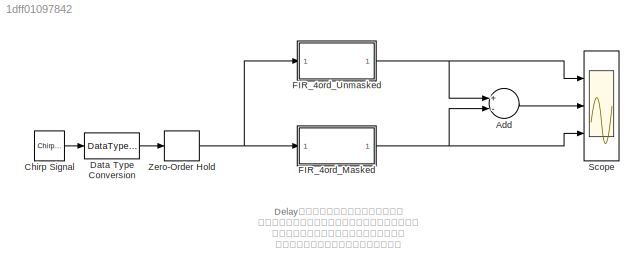
MODEL slx_1dff01097842
KIND model
CONFIG AbsTol = auto
CONFIG FixedStep = auto
CONFIG MaxStep = auto
CONFIG MinStep = auto
CONFIG PreLoadFcn = H=[1 0 3 0 1]/4\npipeline=0\n
CONFIG RelTol = 1e-3
CONFIG SampleTimeConstraint = Unconstrained
CONFIG Solver = FixedStepDiscrete
CONFIG SolverMode = SingleTasking
CONFIG SolverName = FixedStepDiscrete
CONFIG StartTime = 0.0
CONFIG StopTime = 10.0
BLOCK [Sum] Add
  InputSameDT = off
  Inputs = +-
  OutDataTypeStr = Inherit: Inherit via internal rule
  Ports = [2, 1]
  SaturateOnIntegerOverflow = off
BLOCK [Reference] Chirp Signal  REF=simulink/Sources/Chirp Signal
  Ports = [0, 1]
  SourceBlock = simulink/Sources/Chirp Signal
  SourceType = chirp
BLOCK [DataTypeConversion] Data Type Conversion
  OutDataTypeStr = fixdt(1,16,14)
  RndMeth = Nearest
  SaturateOnIntegerOverflow = off
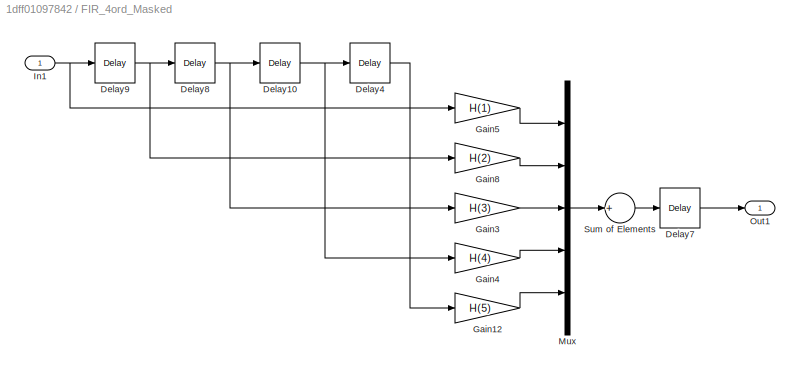
BLOCK [SubSystem] FIR_4ord_Masked
  Ports = [1, 1]
  RequestExecContextInheritance = off
  Variant = off
BLOCK [Delay] FIR_4ord_Masked/Delay10
  DelayLength = 1
  InitialCondition = 0
  InputPortMap = u0
  InputProcessing = Inherited
  Ports = [1, 1]
  UserDataPersistent = on
BLOCK [Delay] FIR_4ord_Masked/Delay4
  DelayLength = 1
  InitialCondition = 0
  InputPortMap = u0
  InputProcessing = Inherited
  Ports = [1, 1]
  UserDataPersistent = on
BLOCK [Delay] FIR_4ord_Masked/Delay7
  DelayLength = pipeline
  InitialCondition = 0
  InputPortMap = u0
  InputProcessing = Inherited
  Ports = [1, 1]
  UserDataPersistent = on
BLOCK [Delay] FIR_4ord_Masked/Delay8
  DelayLength = 1
  InitialCondition = 0
  InputPortMap = u0
  InputProcessing = Inherited
  Ports = [1, 1]
  UserDataPersistent = on
BLOCK [Delay] FIR_4ord_Masked/Delay9
  DelayLength = 1
  InitialCondition = 0
  InputPortMap = u0
  InputProcessing = Inherited
  Ports = [1, 1]
  UserDataPersistent = on
BLOCK [Gain] FIR_4ord_Masked/Gain12
  Gain = H(5)
  ParamDataTypeStr = Inherit: Inherit via internal rule
  RndMeth = Nearest
  SaturateOnIntegerOverflow = off
BLOCK [Gain] FIR_4ord_Masked/Gain3
  Gain = H(3)
  ParamDataTypeStr = Inherit: Inherit via internal rule
  RndMeth = Nearest
  SaturateOnIntegerOverflow = off
BLOCK [Gain] FIR_4ord_Masked/Gain4
  Gain = H(4)
  ParamDataTypeStr = Inherit: Inherit via internal rule
  RndMeth = Nearest
  SaturateOnIntegerOverflow = off
BLOCK [Gain] FIR_4ord_Masked/Gain5
  Gain = H(1)
  ParamDataTypeStr = Inherit: Inherit via internal rule
  RndMeth = Nearest
  SaturateOnIntegerOverflow = off
BLOCK [Gain] FIR_4ord_Masked/Gain8
  Gain = H(2)
  ParamDataTypeStr = Inherit: Inherit via internal rule
  RndMeth = Nearest
  SaturateOnIntegerOverflow = off
BLOCK [Inport] FIR_4ord_Masked/In1
  IconDisplay = Port number
BLOCK [Mux] FIR_4ord_Masked/Mux
  DisplayOption = bar
  Inputs = 5
  Ports = [5, 1]
BLOCK [Outport] FIR_4ord_Masked/Out1
  IconDisplay = Port number
BLOCK [Sum] FIR_4ord_Masked/Sum of Elements
  InputSameDT = off
  Inputs = +
  OutDataTypeStr = Inherit: Inherit via internal rule
  Ports = [1, 1]
  RndMeth = Nearest
  SaturateOnIntegerOverflow = off
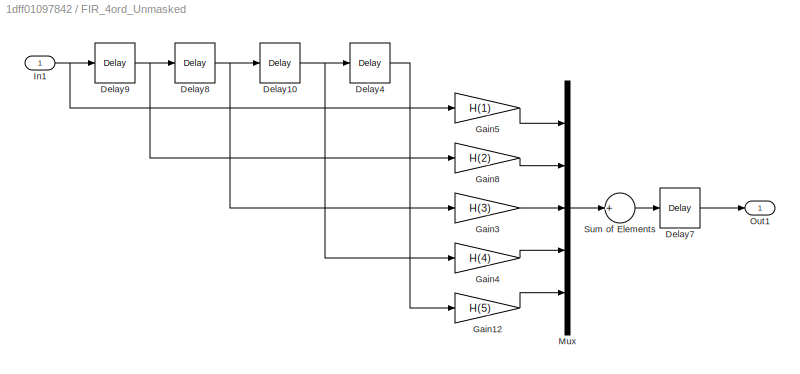
BLOCK [SubSystem] FIR_4ord_Unmasked
  Ports = [1, 1]
  RequestExecContextInheritance = off
  Variant = off
BLOCK [Delay] FIR_4ord_Unmasked/Delay10
  DelayLength = 1
  InitialCondition = 0
  InputPortMap = u0
  InputProcessing = Inherited
  Ports = [1, 1]
  UserDataPersistent = on
BLOCK [Delay] FIR_4ord_Unmasked/Delay4
  DelayLength = 1
  InitialCondition = 0
  InputPortMap = u0
  InputProcessing = Inherited
  Ports = [1, 1]
  UserDataPersistent = on
BLOCK [Delay] FIR_4ord_Unmasked/Delay7
  DelayLength = pipeline
  InitialCondition = 0
  InputPortMap = u0
  InputProcessing = Inherited
  Ports = [1, 1]
  UserDataPersistent = on
BLOCK [Delay] FIR_4ord_Unmasked/Delay8
  DelayLength = 1
  InitialCondition = 0
  InputPortMap = u0
  InputProcessing = Inherited
  Ports = [1, 1]
  UserDataPersistent = on
BLOCK [Delay] FIR_4ord_Unmasked/Delay9
  DelayLength = 1
  InitialCondition = 0
  InputPortMap = u0
  InputProcessing = Inherited
  Ports = [1, 1]
  UserDataPersistent = on
BLOCK [Gain] FIR_4ord_Unmasked/Gain12
  Gain = H(5)
  ParamDataTypeStr = Inherit: Inherit via internal rule
  RndMeth = Nearest
  SaturateOnIntegerOverflow = off
BLOCK [Gain] FIR_4ord_Unmasked/Gain3
  Gain = H(3)
  ParamDataTypeStr = Inherit: Inherit via internal rule
  RndMeth = Nearest
  SaturateOnIntegerOverflow = off
BLOCK [Gain] FIR_4ord_Unmasked/Gain4
  Gain = H(4)
  ParamDataTypeStr = Inherit: Inherit via internal rule
  RndMeth = Nearest
  SaturateOnIntegerOverflow = off
BLOCK [Gain] FIR_4ord_Unmasked/Gain5
  Gain = H(1)
  ParamDataTypeStr = Inherit: Inherit via internal rule
  RndMeth = Nearest
  SaturateOnIntegerOverflow = off
BLOCK [Gain] FIR_4ord_Unmasked/Gain8
  Gain = H(2)
  ParamDataTypeStr = Inherit: Inherit via internal rule
  RndMeth = Nearest
  SaturateOnIntegerOverflow = off
BLOCK [Inport] FIR_4ord_Unmasked/In1
  IconDisplay = Port number
BLOCK [Mux] FIR_4ord_Unmasked/Mux
  DisplayOption = bar
  Inputs = 5
  Ports = [5, 1]
BLOCK [Outport] FIR_4ord_Unmasked/Out1
  IconDisplay = Port number
BLOCK [Sum] FIR_4ord_Unmasked/Sum of Elements
  InputSameDT = off
  Inputs = +
  OutDataTypeStr = Inherit: Inherit via internal rule
  Ports = [1, 1]
  RndMeth = Nearest
  SaturateOnIntegerOverflow = off
BLOCK [Scope] Scope
  NumInputPorts = 3
  Ports = [3]
  ScopeSpecificationString = Simulink.scopes.TimeScopeBlockCfg('CurrentConfiguration', extmgr.ConfigurationSet(extmgr.Configuration('Core','General UI',true),extmgr.Configuration('Core','Source UI',true),extmgr.Configuration('Sources','WiredSimulink',true,'DataLoggingSaveFormat','StructureWithTime','DataLoggingDecimation','1','DataLoggingDecimateData',true),extmgr.Configuration('Visuals','Time Domain',true,'SerializedDisplays...<+3067ch>
BLOCK [ZeroOrderHold] Zero-Order Hold
  SampleTime = 1/1000
ANNOTATION (root): Delayブロックと乗算、加算器といった プリミティブなブロックを使って構成しています。 サブシステム化、さらにマスクブロック化 することで可読性と汎用性が増します。
LINE Add:1 -> Scope:2
LINE Chirp Signal:1 -> Data Type Conversion:1
LINE Data Type Conversion:1 -> Zero-Order Hold:1
NET FIR_4ord_Masked/Delay10:1 -> FIR_4ord_Masked/Delay4:1, FIR_4ord_Masked/Gain4:1
LINE FIR_4ord_Masked/Delay4:1 -> FIR_4ord_Masked/Gain12:1
LINE FIR_4ord_Masked/Delay7:1 -> FIR_4ord_Masked/Out1:1
NET FIR_4ord_Masked/Delay8:1 -> FIR_4ord_Masked/Delay10:1, FIR_4ord_Masked/Gain3:1
NET FIR_4ord_Masked/Delay9:1 -> FIR_4ord_Masked/Delay8:1, FIR_4ord_Masked/Gain8:1
LINE FIR_4ord_Masked/Gain12:1 -> FIR_4ord_Masked/Mux:5
LINE FIR_4ord_Masked/Gain3:1 -> FIR_4ord_Masked/Mux:3
LINE FIR_4ord_Masked/Gain4:1 -> FIR_4ord_Masked/Mux:4
LINE FIR_4ord_Masked/Gain5:1 -> FIR_4ord_Masked/Mux:1
LINE FIR_4ord_Masked/Gain8:1 -> FIR_4ord_Masked/Mux:2
NET FIR_4ord_Masked/In1:1 -> FIR_4ord_Masked/Delay9:1, FIR_4ord_Masked/Gain5:1
LINE FIR_4ord_Masked/Mux:1 -> FIR_4ord_Masked/Sum of Elements:1
LINE FIR_4ord_Masked/Sum of Elements:1 -> FIR_4ord_Masked/Delay7:1
NET FIR_4ord_Masked:1 -> Add:2, Scope:3
NET FIR_4ord_Unmasked/Delay10:1 -> FIR_4ord_Unmasked/Delay4:1, FIR_4ord_Unmasked/Gain4:1
LINE FIR_4ord_Unmasked/Delay4:1 -> FIR_4ord_Unmasked/Gain12:1
LINE FIR_4ord_Unmasked/Delay7:1 -> FIR_4ord_Unmasked/Out1:1
NET FIR_4ord_Unmasked/Delay8:1 -> FIR_4ord_Unmasked/Delay10:1, FIR_4ord_Unmasked/Gain3:1
NET FIR_4ord_Unmasked/Delay9:1 -> FIR_4ord_Unmasked/Delay8:1, FIR_4ord_Unmasked/Gain8:1
LINE FIR_4ord_Unmasked/Gain12:1 -> FIR_4ord_Unmasked/Mux:5
LINE FIR_4ord_Unmasked/Gain3:1 -> FIR_4ord_Unmasked/Mux:3
LINE FIR_4ord_Unmasked/Gain4:1 -> FIR_4ord_Unmasked/Mux:4
LINE FIR_4ord_Unmasked/Gain5:1 -> FIR_4ord_Unmasked/Mux:1
LINE FIR_4ord_Unmasked/Gain8:1 -> FIR_4ord_Unmasked/Mux:2
NET FIR_4ord_Unmasked/In1:1 -> FIR_4ord_Unmasked/Delay9:1, FIR_4ord_Unmasked/Gain5:1
LINE FIR_4ord_Unmasked/Mux:1 -> FIR_4ord_Unmasked/Sum of Elements:1
LINE FIR_4ord_Unmasked/Sum of Elements:1 -> FIR_4ord_Unmasked/Delay7:1
NET FIR_4ord_Unmasked:1 -> Add:1, Scope:1
NET Zero-Order Hold:1 -> FIR_4ord_Masked:1, FIR_4ord_Unmasked:1
note: NET lines group one-source signal fan-out (src -> all destinations, sorted); 1:1 wires keep LINE
